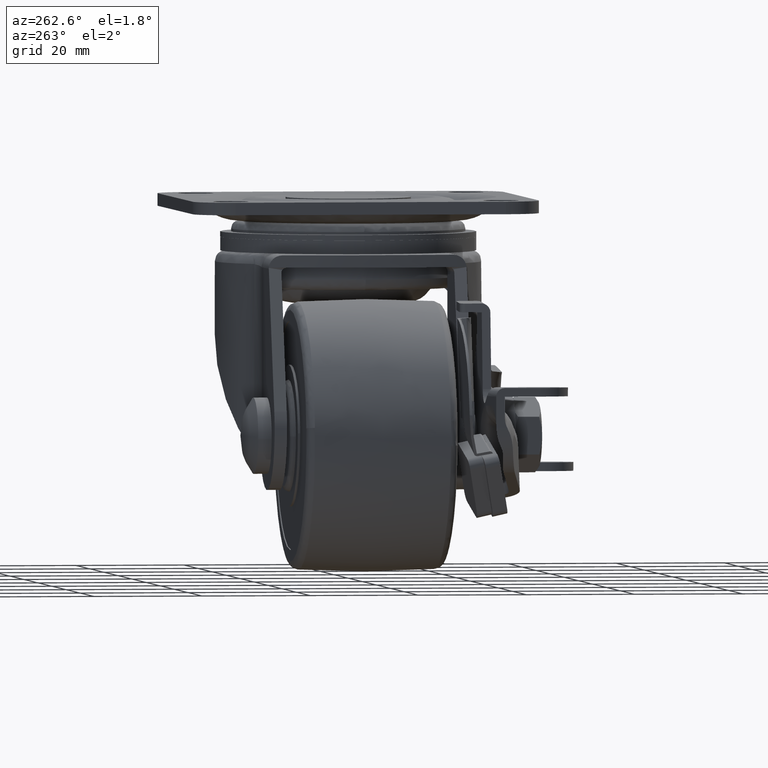
[diagram: clean part render]
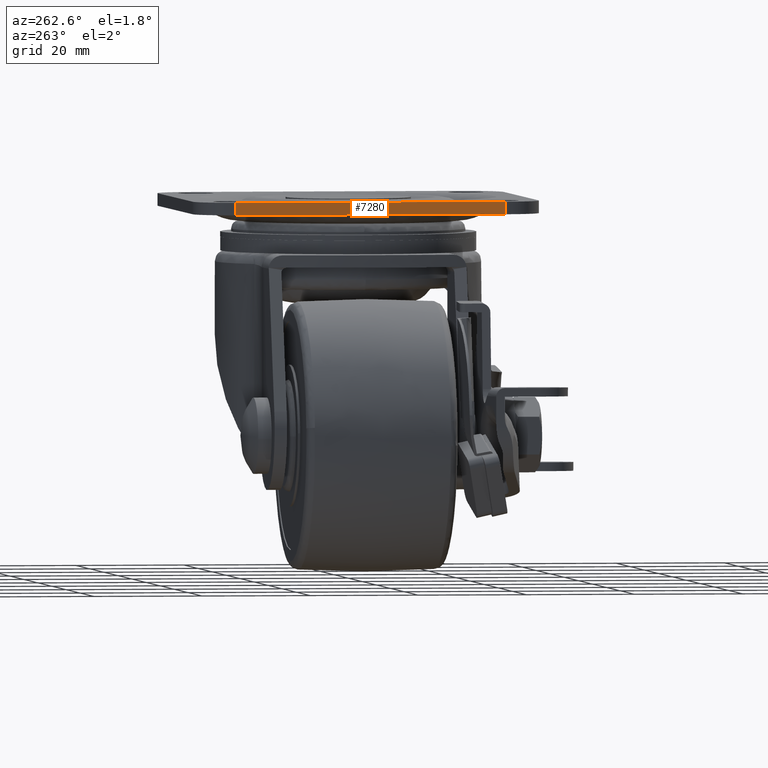
[diagram: same view with one face highlighted and labeled with its STEP entity id]
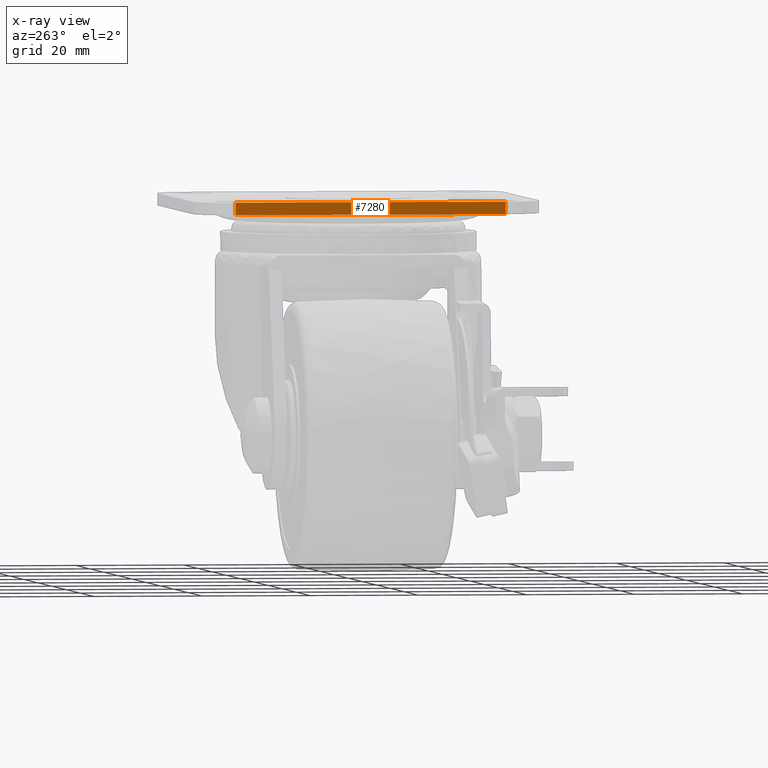
[diagram: x-ray of the same camera — body ghosted, the highlighted face saturated]
A machine part, auxiliary view. The second image highlights one B-rep face of the part: STEP entity #7280.
The next image is the same camera in x-ray: the body ghosted, the highlighted face saturated — about 0% of this face is hidden behind the body in this view.
In plain terms, the highlighted face is a freeform B-spline surface patch.
Its self-contained STEP definition (entity closure, byte-faithful):
#6916=CARTESIAN_POINT('',(-32.0,25.0,0.0));
#6917=VERTEX_POINT('',#6916);
#6931=CARTESIAN_POINT('',(-32.0,-25.0,0.0));
#6932=VERTEX_POINT('',#6931);
#6933=CARTESIAN_POINT('',(-32.0,25.0,0.0));
#6934=CARTESIAN_POINT('',(-32.0,-25.0,0.0));
#6935=QUASI_UNIFORM_CURVE('',1,(#6933,#6934),.UNSPECIFIED.,.F.,.U.);
#6936=EDGE_CURVE('',#6917,#6932,#6935,.T.);
#7086=CARTESIAN_POINT('',(-32.0,-25.0,-2.300000000000080));
#7087=VERTEX_POINT('',#7086);
#7101=CARTESIAN_POINT('',(-32.0,25.0,-2.300000000000080));
#7102=VERTEX_POINT('',#7101);
#7103=CARTESIAN_POINT('',(-32.0,25.0,-2.300000000000080));
#7104=CARTESIAN_POINT('',(-32.0,-25.0,-2.300000000000080));
#7105=QUASI_UNIFORM_CURVE('',1,(#7103,#7104),.UNSPECIFIED.,.F.,.U.);
#7106=EDGE_CURVE('',#7102,#7087,#7105,.T.);
#7255=CARTESIAN_POINT('',(-32.0,-25.0,-2.300000000000080));
#7256=CARTESIAN_POINT('',(-32.0,-25.0,0.0));
#7257=QUASI_UNIFORM_CURVE('',1,(#7255,#7256),.UNSPECIFIED.,.F.,.U.);
#7258=EDGE_CURVE('',#7087,#6932,#7257,.T.);
#7265=CARTESIAN_POINT('',(-32.0,27.497499903090301,-2.414884995542237));
#7266=CARTESIAN_POINT('',(-32.0,-27.497501244194812,-2.414884995542237));
#7267=CARTESIAN_POINT('',(-32.0,27.497499903090301,0.114885057232965));
#7268=CARTESIAN_POINT('',(-32.0,-27.497501244194812,0.114885057232965));
#7269=B_SPLINE_SURFACE_WITH_KNOTS('',1,1,((#7265,#7267),(#7266,#7268)),.UNSPECIFIED.,.F.,.F.,.U.,(2,2),(2,2),(0.0,54.995001147285109),(0.0,2.529770052775202),.UNSPECIFIED.);
#7270=ORIENTED_EDGE('',*,*,#6936,.F.);
#7271=CARTESIAN_POINT('',(-32.0,25.0,-2.300000000000080));
#7272=CARTESIAN_POINT('',(-32.0,25.0,0.0));
#7273=QUASI_UNIFORM_CURVE('',1,(#7271,#7272),.UNSPECIFIED.,.F.,.U.);
#7274=EDGE_CURVE('',#7102,#6917,#7273,.T.);
#7275=ORIENTED_EDGE('',*,*,#7274,.F.);
#7276=ORIENTED_EDGE('',*,*,#7106,.T.);
#7277=ORIENTED_EDGE('',*,*,#7258,.T.);
#7278=EDGE_LOOP('',(#7270,#7275,#7276,#7277));
#7279=FACE_OUTER_BOUND('',#7278,.T.);
#7280=ADVANCED_FACE('',(#7279),#7269,.T.);